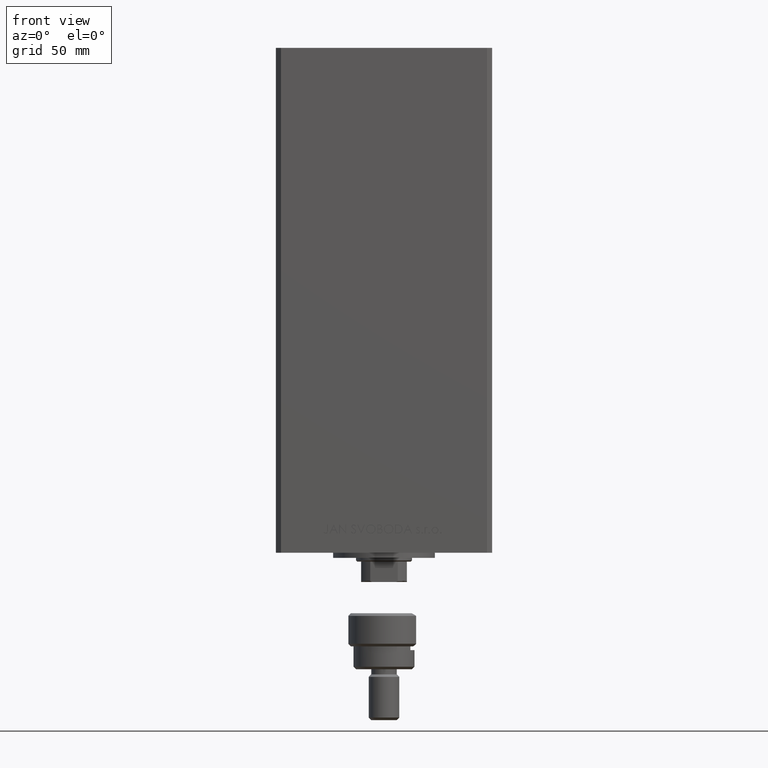
[diagram: clean part render]
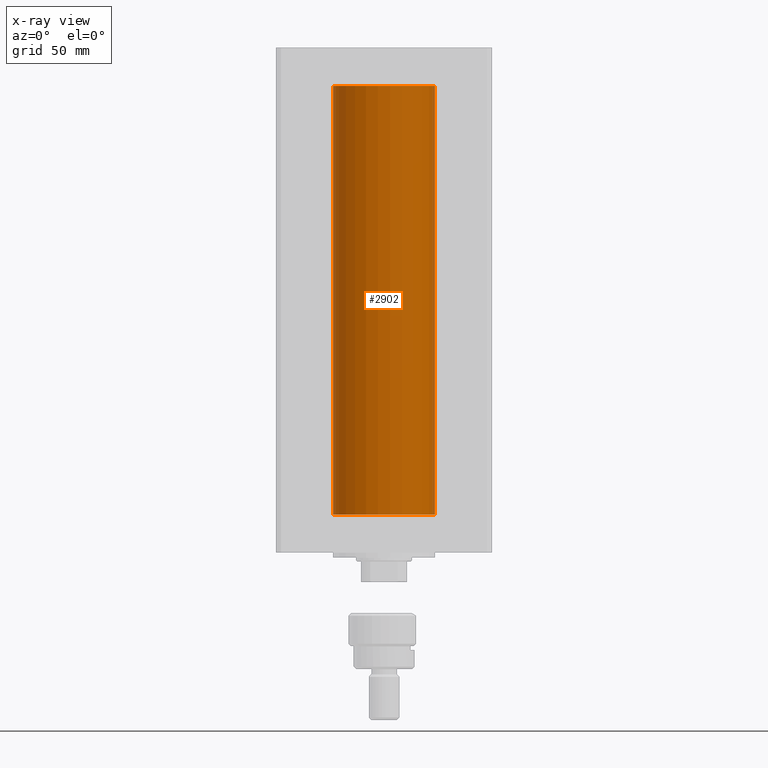
[diagram: x-ray — body ghosted, one internal face saturated and labeled with its STEP entity id]
A machine part, front view, then the same camera in x-ray: the body is ghosted and one INTERNAL B-rep face — a face not visible from any outside direction — is saturated and labeled: STEP entity #2902.
In plain terms, the highlighted cylindrical surface (partial cylindrical patch) has radius 20 mm, axis along (-0, -0, -1).
Its self-contained STEP definition (entity closure, byte-faithful):
#966 = CARTESIAN_POINT ( 'NONE',  ( 0.000000000000000000, 0.000000000000000000, 168.5000000000000000 ) ) ;
#1046 = CARTESIAN_POINT ( 'NONE',  ( 20.00000000000000000, 2.449293598294706513E-15, 168.5000000000000000 ) ) ;
#1906 = VECTOR ( 'NONE', #14176, 1000.000000000000000 ) ;
#2137 = VERTEX_POINT ( 'NONE', #34576 ) ;
#2902 = ADVANCED_FACE ( 'NONE', ( #12178 ), #9374, .F. ) ;
#4435 = CARTESIAN_POINT ( 'NONE',  ( -20.00000000000000000, 0.000000000000000000, 168.5000000000000000 ) ) ;
#4971 = CIRCLE ( 'NONE', #30203, 20.00000000000000000 ) ;
#6015 = CARTESIAN_POINT ( 'NONE',  ( 20.00000000000000000, 2.449293598294706513E-15, 168.5000000000000000 ) ) ;
#6792 = DIRECTION ( 'NONE',  ( 1.000000000000000000, 0.000000000000000000, 0.000000000000000000 ) ) ;
#9374 = CYLINDRICAL_SURFACE ( 'NONE', #42156, 20.00000000000000000 ) ;
#10618 = CARTESIAN_POINT ( 'NONE',  ( 0.000000000000000000, 0.000000000000000000, 0.000000000000000000 ) ) ;
#11668 = VERTEX_POINT ( 'NONE', #34853 ) ;
#12178 = FACE_OUTER_BOUND ( 'NONE', #39372, .T. ) ;
#12594 = LINE ( 'NONE', #4435, #21535 ) ;
#14176 = DIRECTION ( 'NONE',  ( -0.000000000000000000, -0.000000000000000000, -1.000000000000000000 ) ) ;
#18106 = AXIS2_PLACEMENT_3D ( 'NONE', #10618, #26157, #6792 ) ;
#19743 = DIRECTION ( 'NONE',  ( -0.000000000000000000, -0.000000000000000000, -1.000000000000000000 ) ) ;
#19821 = VERTEX_POINT ( 'NONE', #1046 ) ;
#21535 = VECTOR ( 'NONE', #19743, 1000.000000000000000 ) ;
#23028 = CARTESIAN_POINT ( 'NONE',  ( -20.00000000000000000, 0.000000000000000000, 0.000000000000000000 ) ) ;
#23334 = DIRECTION ( 'NONE',  ( -0.000000000000000000, 0.000000000000000000, 1.000000000000000000 ) ) ;
#23900 = DIRECTION ( 'NONE',  ( -0.000000000000000000, -0.000000000000000000, -1.000000000000000000 ) ) ;
#26157 = DIRECTION ( 'NONE',  ( -0.000000000000000000, 0.000000000000000000, 1.000000000000000000 ) ) ;
#26906 = EDGE_CURVE ( 'NONE', #11668, #47750, #12594, .T. ) ;
#27150 = CARTESIAN_POINT ( 'NONE',  ( 0.000000000000000000, 0.000000000000000000, 168.5000000000000000 ) ) ;
#30203 = AXIS2_PLACEMENT_3D ( 'NONE', #27150, #23334, #35054 ) ;
#31177 = ORIENTED_EDGE ( 'NONE', *, *, #37065, .F. ) ;
#31804 = DIRECTION ( 'NONE',  ( -1.000000000000000000, 0.000000000000000000, 0.000000000000000000 ) ) ;
#33103 = ORIENTED_EDGE ( 'NONE', *, *, #26906, .F. ) ;
#34576 = CARTESIAN_POINT ( 'NONE',  ( 20.00000000000000000, 2.449293598294706513E-15, 0.000000000000000000 ) ) ;
#34853 = CARTESIAN_POINT ( 'NONE',  ( -20.00000000000000000, 0.000000000000000000, 168.5000000000000000 ) ) ;
#35012 = EDGE_CURVE ( 'NONE', #11668, #19821, #4971, .T. ) ;
#35054 = DIRECTION ( 'NONE',  ( 1.000000000000000000, 0.000000000000000000, 0.000000000000000000 ) ) ;
#37065 = EDGE_CURVE ( 'NONE', #47750, #2137, #37601, .T. ) ;
#37601 = CIRCLE ( 'NONE', #18106, 20.00000000000000000 ) ;
#39372 = EDGE_LOOP ( 'NONE', ( #45135, #44218, #31177, #33103 ) ) ;
#40373 = EDGE_CURVE ( 'NONE', #19821, #2137, #49610, .T. ) ;
#42156 = AXIS2_PLACEMENT_3D ( 'NONE', #966, #23900, #31804 ) ;
#44218 = ORIENTED_EDGE ( 'NONE', *, *, #40373, .T. ) ;
#45135 = ORIENTED_EDGE ( 'NONE', *, *, #35012, .T. ) ;
#47750 = VERTEX_POINT ( 'NONE', #23028 ) ;
#49610 = LINE ( 'NONE', #6015, #1906 ) ;